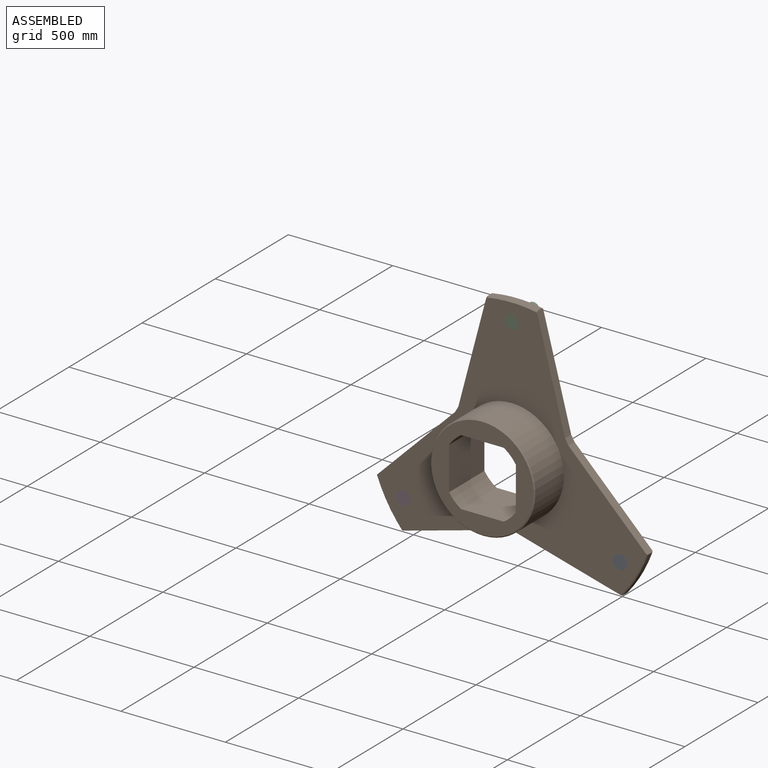
[diagram: assembled view]
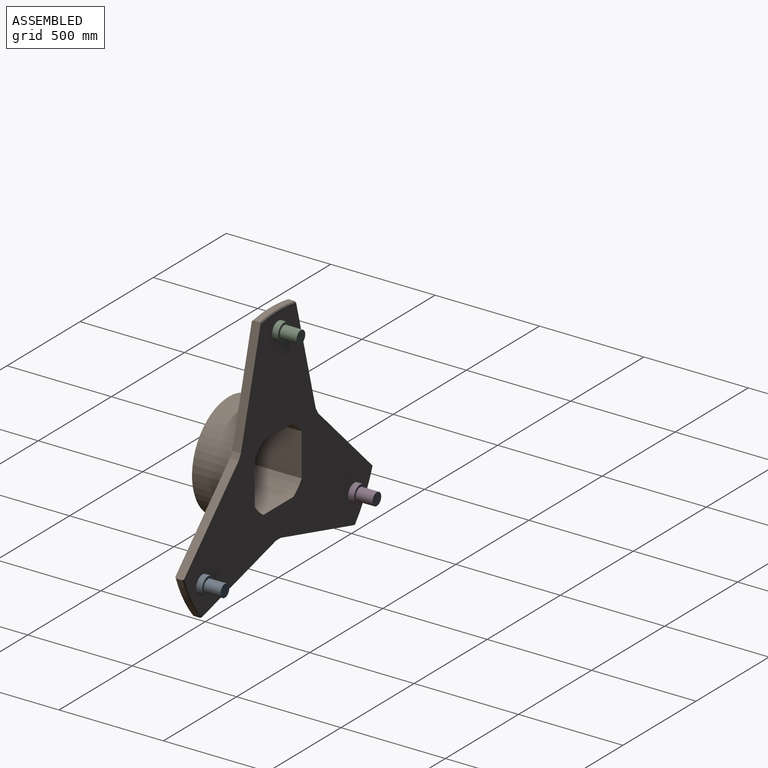
[diagram: assembled view, second angle]
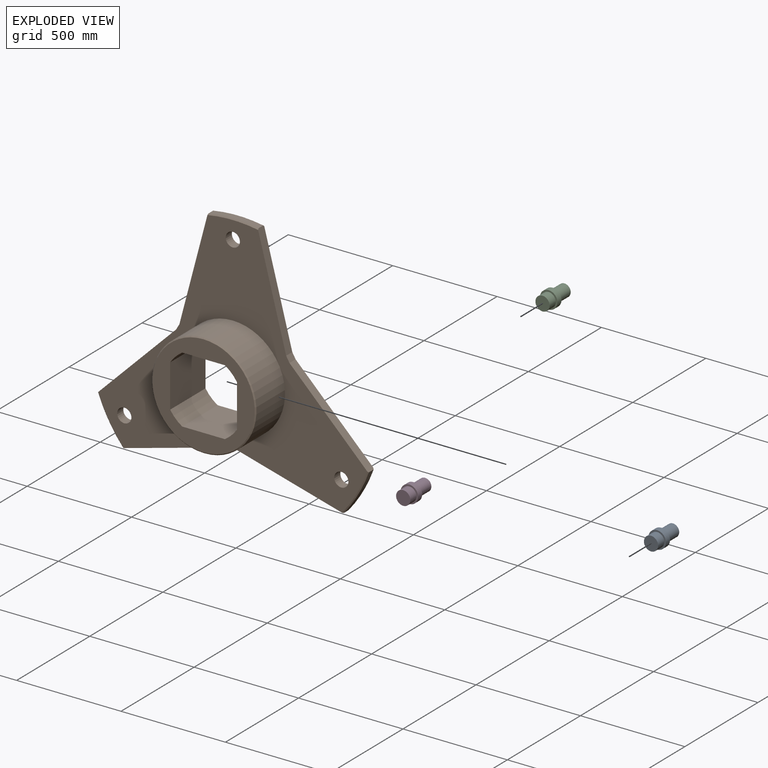
[diagram: exploded view]
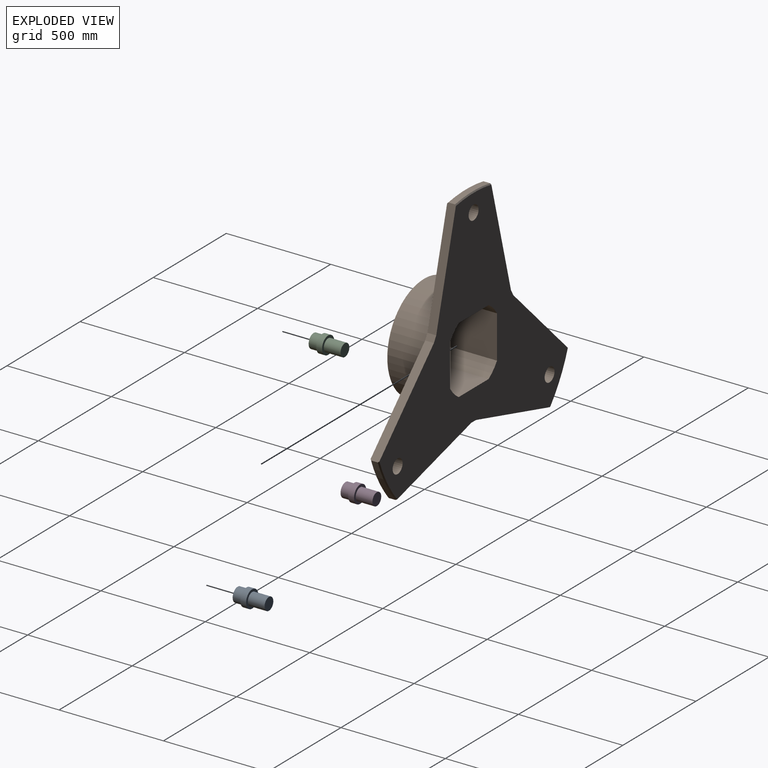
[diagram: exploded view, second angle]
ASSEMBLY  parts=4 mates=3
PART A: 7 faces, bbox 84x150x84 mm
  f0: cylinder r=30mm len=80mm, axis (0,-1,0), area 15079.6mm2, adj f1,f6
  f1: plane 60x60mm, normal (0,-1,0), area 2827.4mm2, adj f0
  f2: plane 68x68mm, normal (0,1,0), area 3631.7mm2, adj f3
  f3: cylinder r=34mm len=68mm, axis (0,-1,0), area 8972.4mm2, adj f2,f4
  f4: plane 84x84mm, normal (0,1,0), area 1910.1mm2, adj f3,f5
  f5: cylinder r=42mm len=84mm, axis (0,-1,0), area 7389mm2, adj f4,f6
  f6: plane 84x84mm, normal (0,-1,0), area 2714.3mm2, adj f0,f5
PART B: 34 faces, bbox 1298.5x242x1135.5 mm
  f0: cylinder r=690mm len=207.85mm, axis (0,-1,0), area 7719.3mm2, adj f5,f6,f20,f25
  f1: plane 1289.08x1127.22mm, normal (0,-1,0), area 514593.3mm2, adj f3,f6,f9,f13,f14,f15,f16,f17
  f2: cone r=690mm half-angle=45deg, axis (0,-1,0), area 1715.9mm2, adj f7,f8,f17,f24
  f3: cone r=685mm half-angle=45deg, axis (0,1,0), area 1715.9mm2, adj f1,f8,f17,f24
  f4: cylinder r=690mm len=207.85mm, axis (0,-1,0), area 7719.3mm2, adj f12,f13,f16,f21
  f5: cone r=690mm half-angle=45deg, axis (0,-1,0), area 1715.9mm2, adj f0,f7,f20,f25
  f6: cone r=685mm half-angle=45deg, axis (0,1,0), area 1715.9mm2, adj f0,f1,f20,f25
  f7: plane 1289.08x1127.22mm, normal (0,1,0), area 614204.1mm2, adj f2,f5,f12,f14,f15,f16,f17,f18
  f8: cylinder r=690mm len=240mm, axis (0,-1,0), area 7719.3mm2, adj f2,f3,f17,f24
  f9: cylinder r=250mm len=500mm, axis (0,-1,0), area 306305.3mm2, adj f1,f11
  f10: plane 490x490mm, normal (0,-1,0), area 91835.4mm2, adj f11,f26,f27,f28,f29,f30,f31,f32
  f11: cone r=245mm half-angle=45deg, axis (0,1,0), area 10996.1mm2, adj f9,f10
  f12: cone r=690mm half-angle=45deg, axis (0,-1,0), area 1715.9mm2, adj f4,f7,f16,f21
  f13: cone r=685mm half-angle=45deg, axis (0,1,0), area 1715.9mm2, adj f1,f4,f16,f21
  f14: cylinder r=34mm len=68mm, axis (0,-1,0), area 8972.4mm2, adj f1,f7
  f15: plane 42x27.26mm, normal (0.87,0,0.5), area 1322.2mm2, adj f1,f7,f16,f17
  f16: plane 377.08x374.34mm, normal (0.7,0,0.71), area 22287.9mm2, adj f1,f4,f7,f12,f13,f15
  f17: plane 513.72x135.65mm, normal (0.97,0,0.26), area 22287.9mm2, adj f1,f2,f3,f7,f8,f15
  f18: cylinder r=34mm len=68mm, axis (0,-1,0), area 8972.4mm2, adj f1,f7
  f19: plane 42x31.48mm, normal (0,0,-1), area 1322.2mm2, adj f1,f7,f20,f21
  f20: plane 512.72x139.4mm, normal (0.26,0,-0.96), area 22287.9mm2, adj f0,f1,f5,f6,f7,f19
  f21: plane 512.72x139.4mm, normal (-0.26,0,-0.96), area 22287.9mm2, adj f1,f4,f7,f12,f13,f19
  f22: cylinder r=34mm len=68mm, axis (0,-1,0), area 8972.4mm2, adj f1,f7
  f23: plane 42x27.26mm, normal (-0.87,0,0.5), area 1322.2mm2, adj f1,f7,f24,f25
  f24: plane 513.72x135.65mm, normal (-0.97,0,0.26), area 22287.9mm2, adj f1,f2,f3,f7,f8,f23
  f25: plane 377.08x374.34mm, normal (-0.7,0,0.71), area 22287.9mm2, adj f0,f1,f5,f6,f7,f23
  f26: plane 242x204.94mm, normal (0,0,1), area 49595.2mm2, adj f7,f10,f27,f33
  f27: cylinder r=190mm len=242mm, axis (0,-1,0), area 19842.8mm2, adj f7,f10,f26,f28
  f28: plane 242x204.94mm, normal (-1,0,0), area 49595.2mm2, adj f7,f10,f27,f29
  f29: cylinder r=190mm len=242mm, axis (0,-1,0), area 19842.8mm2, adj f7,f10,f28,f30
  f30: plane 242x204.94mm, normal (0,0,-1), area 49595.2mm2, adj f7,f10,f29,f31
  f31: cylinder r=190mm len=242mm, axis (0,-1,0), area 19842.8mm2, adj f7,f10,f30,f32
  f32: plane 242x204.94mm, normal (1,0,0), area 49595.2mm2, adj f7,f10,f31,f33
  f33: cylinder r=190mm len=242mm, axis (0,-1,0), area 19842.8mm2, adj f7,f10,f26,f32
PART C: same geometry as A
PART D: same geometry as A
PLACE A rot(axis=(1,0,0),180deg) t=(519.62,308,800)mm
PLACE B t=(0,300,0)mm fixed
PLACE C rot(axis=(1,0,0),180deg) t=(0,308,1700)mm
PLACE D rot(axis=(1,0,0),180deg) t=(-519.62,308,800)mm
MATE fastened D.f0 <-> B.f22  axis (0,-1,0) through (-519.62,0,-300)mm
MATE fastened A.f0 <-> B.f18  axis (0,-1,0) through (519.62,0,-300)mm
MATE fastened C.f0 <-> B.f14  axis (0,-1,0) through (0,0,600)mm
